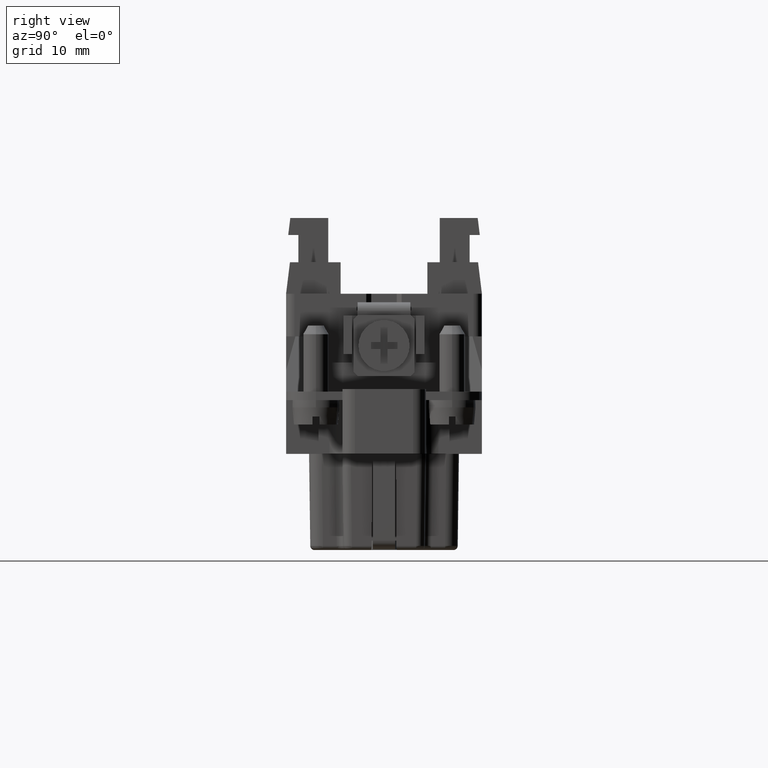
[diagram: clean part render]
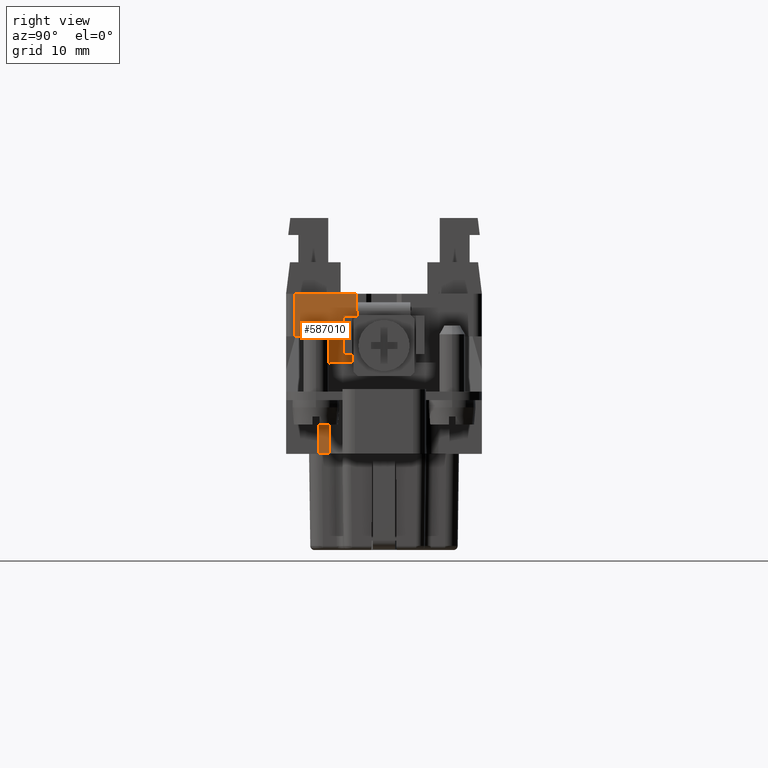
[diagram: same view with one face highlighted and labeled with its STEP entity id]
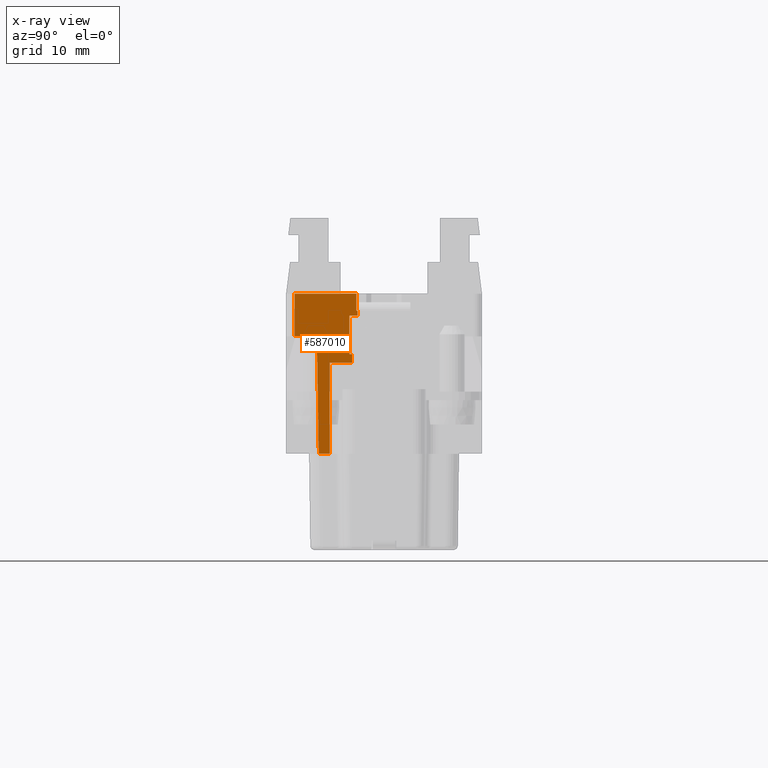
[diagram: x-ray of the same camera — body ghosted, the highlighted face saturated]
A machine part, right view. The second image highlights one B-rep face of the part: STEP entity #587010.
The next image is the same camera in x-ray: the body ghosted, the highlighted face saturated — about 0% of this face is hidden behind the body in this view.
In plain terms, the highlighted planar face has unit normal (1, 0, 0).
Its self-contained STEP definition (entity closure, byte-faithful):
#135240=CARTESIAN_POINT('',(117.245652,50.3336120000011,11.1999999999167
));
#135250=VERTEX_POINT('',#135240);
#135280=CARTESIAN_POINT('',(117.245652,0.,11.1999999999167));
#135290=DIRECTION('',(0.,1.,-1.75244657631568E-27));
#135300=VECTOR('',#135290,1.);
#135310=LINE('',#135280,#135300);
#135320=CARTESIAN_POINT('',(117.245652,43.0836120000009,11.1999999999167
));
#135330=VERTEX_POINT('',#135320);
#135340=EDGE_CURVE('',#135330,#135250,#135310,.T.);
#155570=CARTESIAN_POINT('',(117.245652,48.0763470000009,
-0.800000000000008));
#155580=DIRECTION('',(1.,0.,0.));
#155590=DIRECTION('',(0.,1.,0.));
#155600=AXIS2_PLACEMENT_3D('',#155570,#155580,#155590);
#155610=PLANE('',#155600);
#163030=CARTESIAN_POINT('',(117.245652,49.5213621000815,4.0999999999997)
);
#163040=VERTEX_POINT('',#163030);
#163350=CARTESIAN_POINT('',(117.245652,49.833612,4.0999999999997));
#163360=VERTEX_POINT('',#163350);
#163390=CARTESIAN_POINT('',(117.245652,0.,4.09999999999968));
#163400=DIRECTION('',(0.,-1.,-3.61242557992896E-16));
#163410=VECTOR('',#163400,1.);
#163420=LINE('',#163390,#163410);
#163430=EDGE_CURVE('',#163360,#163040,#163420,.T.);
#188090=CARTESIAN_POINT('',(117.245652,47.1836120000009,
-1.30000000000001));
#188100=VERTEX_POINT('',#188090);
#188130=CARTESIAN_POINT('',(117.245652,47.183612,0.));
#188140=DIRECTION('',(0.,3.6124255799288E-16,-1.));
#188150=VECTOR('',#188140,1.);
#188160=LINE('',#188130,#188150);
#188170=CARTESIAN_POINT('',(117.245652,47.183612,3.0999999999997));
#188180=VERTEX_POINT('',#188170);
#188190=EDGE_CURVE('',#188180,#188100,#188160,.T.);
#242680=CARTESIAN_POINT('',(117.245652,45.6836120000009,6.2));
#242690=VERTEX_POINT('',#242680);
#242720=CARTESIAN_POINT('',(117.245652,45.7918334025558,0.));
#242730=DIRECTION('',(0.,0.0174524064372833,-0.999847695156391));
#242740=VECTOR('',#242730,1.);
#242750=LINE('',#242720,#242740);
#242760=CARTESIAN_POINT('',(117.245652,45.9244918960103,-7.6));
#242770=VERTEX_POINT('',#242760);
#242780=EDGE_CURVE('',#242690,#242770,#242750,.T.);
#302650=CARTESIAN_POINT('',(117.245652,0.,-7.60000000000001));
#302660=DIRECTION('',(0.,-1.,0.));
#302670=VECTOR('',#302660,1.);
#302680=LINE('',#302650,#302670);
#302690=CARTESIAN_POINT('',(117.245652,47.1836120000009,-7.6));
#302700=VERTEX_POINT('',#302690);
#302710=EDGE_CURVE('',#302700,#242770,#302680,.T.);
#440620=CARTESIAN_POINT('',(117.245652,50.483612,9.19999999999976));
#440630=VERTEX_POINT('',#440620);
#440660=CARTESIAN_POINT('',(117.245652,0.,9.19999999999976));
#440670=DIRECTION('',(0.,1.,1.20104072819899E-28));
#440680=VECTOR('',#440670,1.);
#440690=LINE('',#440660,#440680);
#440700=CARTESIAN_POINT('',(117.245652,50.3336120000011,9.19999999999976
));
#440710=VERTEX_POINT('',#440700);
#440720=EDGE_CURVE('',#440710,#440630,#440690,.T.);
#586310=ORIENTED_EDGE('',*,*,#440720,.F.);
#586320=CARTESIAN_POINT('',(117.245652,50.483612,0.));
#586330=DIRECTION('',(0.,3.6124255799288E-16,-1.));
#586340=VECTOR('',#586330,1.);
#586350=LINE('',#586320,#586340);
#586360=CARTESIAN_POINT('',(117.245652,50.483612,8.5999999999997));
#586370=VERTEX_POINT('',#586360);
#586380=EDGE_CURVE('',#440630,#586370,#586350,.T.);
#586390=ORIENTED_EDGE('',*,*,#586380,.F.);
#586400=CARTESIAN_POINT('',(117.245652,0.,8.59999999999968));
#586410=DIRECTION('',(0.,-1.,-3.61242557992896E-16));
#586420=VECTOR('',#586410,1.);
#586430=LINE('',#586400,#586420);
#586440=CARTESIAN_POINT('',(117.245652,49.5213621000815,8.5999999999997)
);
#586450=VERTEX_POINT('',#586440);
#586460=EDGE_CURVE('',#586370,#586450,#586430,.T.);
#586470=ORIENTED_EDGE('',*,*,#586460,.F.);
#586480=CARTESIAN_POINT('',(117.245652,49.5213621000816,
-17.0000000000003));
#586490=DIRECTION('',(-1.57715611723761E-15,3.61242557992896E-16,-1.));
#586500=VECTOR('',#586490,1.);
#586510=LINE('',#586480,#586500);
#586520=EDGE_CURVE('',#586450,#163040,#586510,.T.);
#586530=ORIENTED_EDGE('',*,*,#586520,.F.);
#586540=ORIENTED_EDGE('',*,*,#163430,.T.);
#586550=CARTESIAN_POINT('',(117.245652,49.833612,0.));
#586560=DIRECTION('',(0.,3.6124255799288E-16,-1.));
#586570=VECTOR('',#586560,1.);
#586580=LINE('',#586550,#586570);
#586590=CARTESIAN_POINT('',(117.245652,49.833612,3.0999999999997));
#586600=VERTEX_POINT('',#586590);
#586610=EDGE_CURVE('',#163360,#586600,#586580,.T.);
#586620=ORIENTED_EDGE('',*,*,#586610,.F.);
#586630=CARTESIAN_POINT('',(117.245652,0.,3.09999999999968));
#586640=DIRECTION('',(0.,-1.,-3.61242557992896E-16));
#586650=VECTOR('',#586640,1.);
#586660=LINE('',#586630,#586650);
#586670=EDGE_CURVE('',#586600,#188180,#586660,.T.);
#586680=ORIENTED_EDGE('',*,*,#586670,.F.);
#586690=ORIENTED_EDGE('',*,*,#188190,.F.);
#586700=CARTESIAN_POINT('',(117.245652,47.1836120000009,17.9));
#586710=DIRECTION('',(0.,0.,1.));
#586720=VECTOR('',#586710,1.);
#586730=LINE('',#586700,#586720);
#586740=EDGE_CURVE('',#302700,#188100,#586730,.T.);
#586750=ORIENTED_EDGE('',*,*,#586740,.T.);
#586760=ORIENTED_EDGE('',*,*,#302710,.F.);
#586770=ORIENTED_EDGE('',*,*,#242780,.T.);
#586780=CARTESIAN_POINT('',(117.245652,0.,6.2));
#586790=DIRECTION('',(0.,1.,-1.83697019872103E-16));
#586800=VECTOR('',#586790,1.);
#586810=LINE('',#586780,#586800);
#586820=CARTESIAN_POINT('',(117.245652,43.0836120000009,6.2));
#586830=VERTEX_POINT('',#586820);
#586840=EDGE_CURVE('',#586830,#242690,#586810,.T.);
#586850=ORIENTED_EDGE('',*,*,#586840,.T.);
#586860=CARTESIAN_POINT('',(117.245652,43.0836120000009,0.));
#586870=DIRECTION('',(0.,0.,-1.));
#586880=VECTOR('',#586870,1.);
#586890=LINE('',#586860,#586880);
#586900=EDGE_CURVE('',#135330,#586830,#586890,.T.);
#586910=ORIENTED_EDGE('',*,*,#586900,.T.);
#586920=ORIENTED_EDGE('',*,*,#135340,.F.);
#586930=CARTESIAN_POINT('',(117.245652,50.3336120000011,0.));
#586940=DIRECTION('',(0.,8.18443189166801E-29,1.));
#586950=VECTOR('',#586940,1.);
#586960=LINE('',#586930,#586950);
#586970=EDGE_CURVE('',#440710,#135250,#586960,.T.);
#586980=ORIENTED_EDGE('',*,*,#586970,.T.);
#586990=EDGE_LOOP('',(#586980,#586920,#586910,#586850,#586770,#586760,
#586750,#586690,#586680,#586620,#586540,#586530,#586470,#586390,#586310)
);
#587000=FACE_OUTER_BOUND('',#586990,.T.);
#587010=ADVANCED_FACE('',(#587000),#155610,.T.);